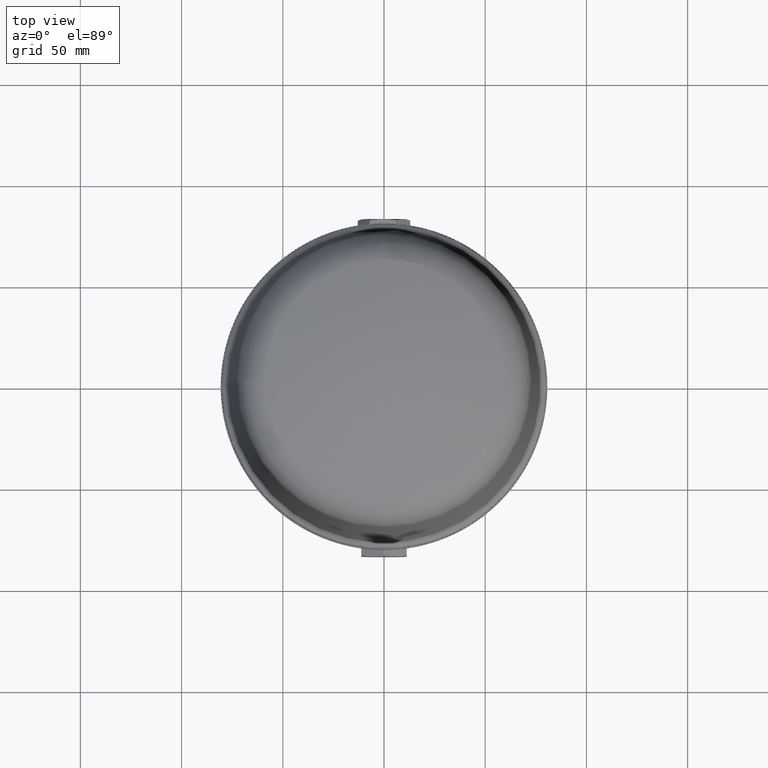
[diagram: clean part render]
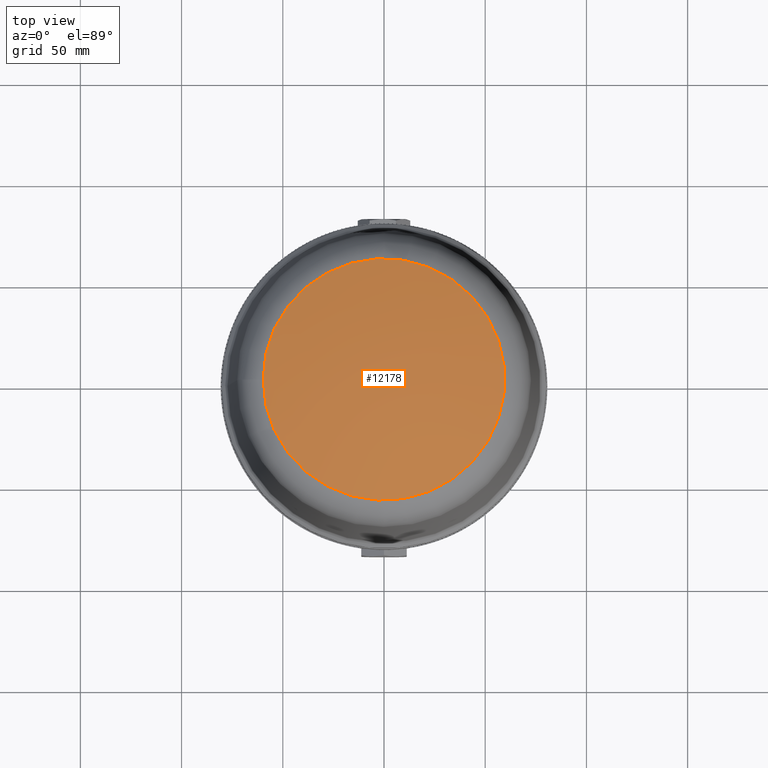
[diagram: same view with one face highlighted and labeled with its STEP entity id]
A machine part, top view. The second image highlights one B-rep face of the part: STEP entity #12178.
In plain terms, the highlighted spherical surface has radius 210 mm.
Its self-contained STEP definition (entity closure, byte-faithful):
#6739=SPHERICAL_SURFACE('',#26314,210.);
#8009=FACE_OUTER_BOUND('',#14179,.T.);
#12178=ADVANCED_FACE('',(#8009),#6739,.T.);
#14179=EDGE_LOOP('',(#19097));
#19097=ORIENTED_EDGE('',*,*,#21269,.T.);
#19656=VERTEX_POINT('',#31723);
#21269=EDGE_CURVE('',#19656,#19656,#23869,.T.);
#23869=CIRCLE('',#24665,59.6976214385919);
#24665=AXIS2_PLACEMENT_3D('',#31722,#26572,#26573);
#26314=AXIS2_PLACEMENT_3D('',#37352,#31058,#31059);
#26572=DIRECTION('',(0.,0.,1.));
#26573=DIRECTION('',(-1.,0.,0.));
#31058=DIRECTION('',(-6.12323399573677E-017,-1.,0.));
#31059=DIRECTION('',(-1.,0.,0.));
#31722=CARTESIAN_POINT('',(-1.59794097580193E-014,0.,228.136022595497));
#31723=CARTESIAN_POINT('',(-59.6976214385919,0.,228.136022595497));
#37352=CARTESIAN_POINT('',(-1.67797301580193E-014,0.,26.8));